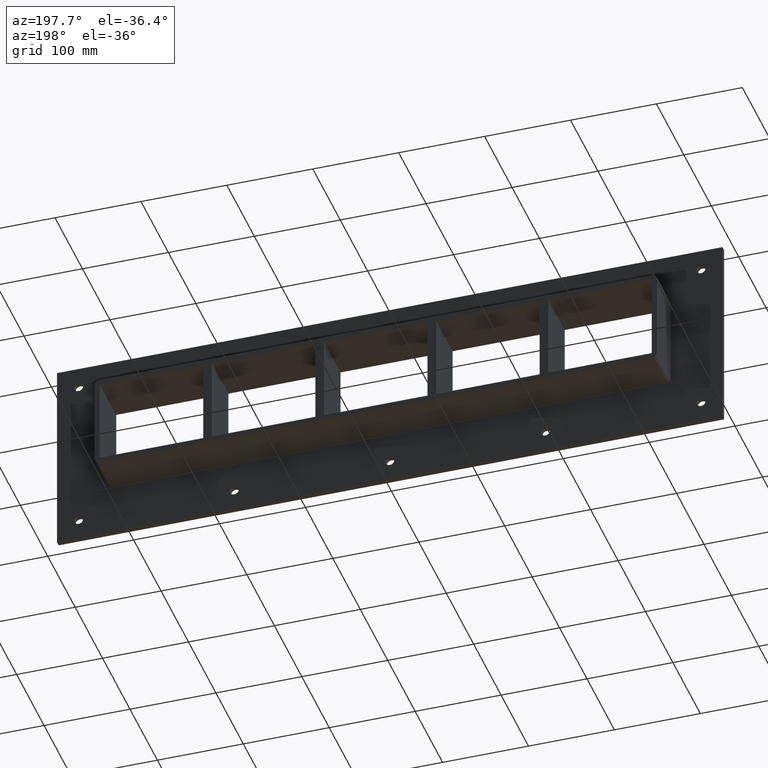
[diagram: clean part render]
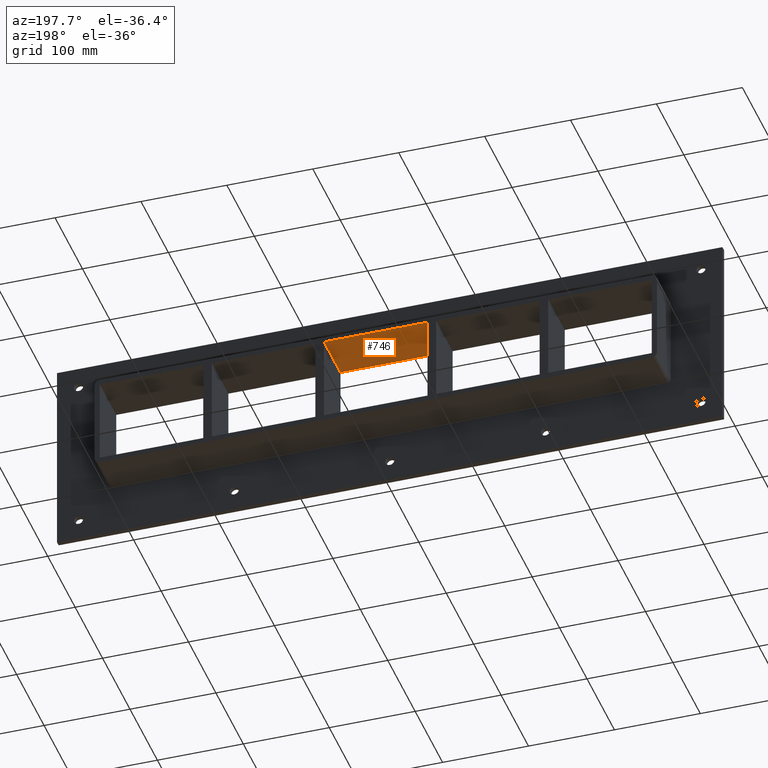
[diagram: same view with one face highlighted and labeled with its STEP entity id]
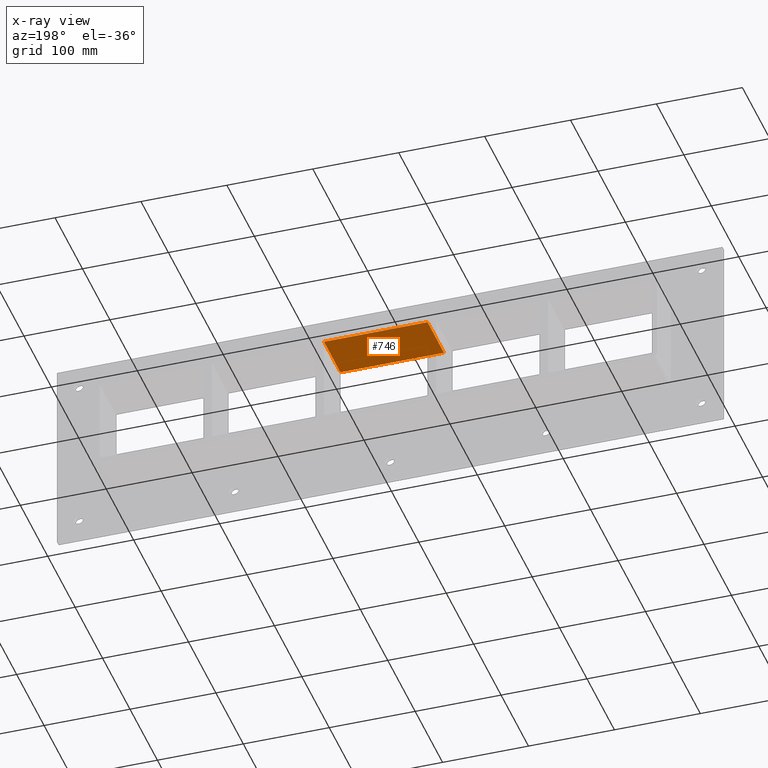
[diagram: x-ray of the same camera — body ghosted, the highlighted face saturated]
A machine part, auxiliary view. The second image highlights one B-rep face of the part: STEP entity #746.
The next image is the same camera in x-ray: the body ghosted, the highlighted face saturated — about 0% of this face is hidden behind the body in this view.
In plain terms, the highlighted planar face has unit normal (0, 0, 1).
Its self-contained STEP definition (entity closure, byte-faithful):
#435=CARTESIAN_POINT('',(60.249999999997996,-3.0,50.499999999999972));
#436=VERTEX_POINT('',#435);
#443=CARTESIAN_POINT('',(60.249999999997996,57.0,50.499999999999972));
#444=VERTEX_POINT('',#443);
#445=CARTESIAN_POINT('',(60.249999999997996,57.000000000000007,50.499999999999972));
#446=DIRECTION('',(0.0,-1.0,0.0));
#447=VECTOR('',#446,60.000000000000007);
#448=LINE('',#445,#447);
#449=EDGE_CURVE('',#444,#436,#448,.T.);
#553=CARTESIAN_POINT('',(-60.250000000007269,-3.0,50.499999999999972));
#554=VERTEX_POINT('',#553);
#571=CARTESIAN_POINT('',(-60.250000000007269,57.0,50.499999999999972));
#572=VERTEX_POINT('',#571);
#579=CARTESIAN_POINT('',(-60.25000000000729,-3.0,50.499999999999972));
#580=DIRECTION('',(0.0,1.0,0.0));
#581=VECTOR('',#580,60.000000000000007);
#582=LINE('',#579,#581);
#583=EDGE_CURVE('',#554,#572,#582,.T.);
#725=CARTESIAN_POINT('',(-321.25,0.0,50.499999999999972));
#726=DIRECTION('',(0.0,0.0,1.0));
#727=DIRECTION('',(1.0,0.0,0.0));
#728=AXIS2_PLACEMENT_3D('',#725,#726,#727);
#729=PLANE('',#728);
#730=ORIENTED_EDGE('',*,*,#449,.T.);
#731=CARTESIAN_POINT('',(-60.250000000007276,-3.0,50.499999999999972));
#732=DIRECTION('',(1.0,0.0,0.0));
#733=VECTOR('',#732,120.50000000000529);
#734=LINE('',#731,#733);
#735=EDGE_CURVE('',#554,#436,#734,.T.);
#736=ORIENTED_EDGE('',*,*,#735,.F.);
#737=ORIENTED_EDGE('',*,*,#583,.T.);
#738=CARTESIAN_POINT('',(60.24999999999801,57.0,50.499999999999972));
#739=DIRECTION('',(-1.0,0.0,0.0));
#740=VECTOR('',#739,120.50000000000529);
#741=LINE('',#738,#740);
#742=EDGE_CURVE('',#444,#572,#741,.T.);
#743=ORIENTED_EDGE('',*,*,#742,.F.);
#744=EDGE_LOOP('',(#730,#736,#737,#743));
#745=FACE_OUTER_BOUND('',#744,.T.);
#746=ADVANCED_FACE('',(#745),#729,.F.);